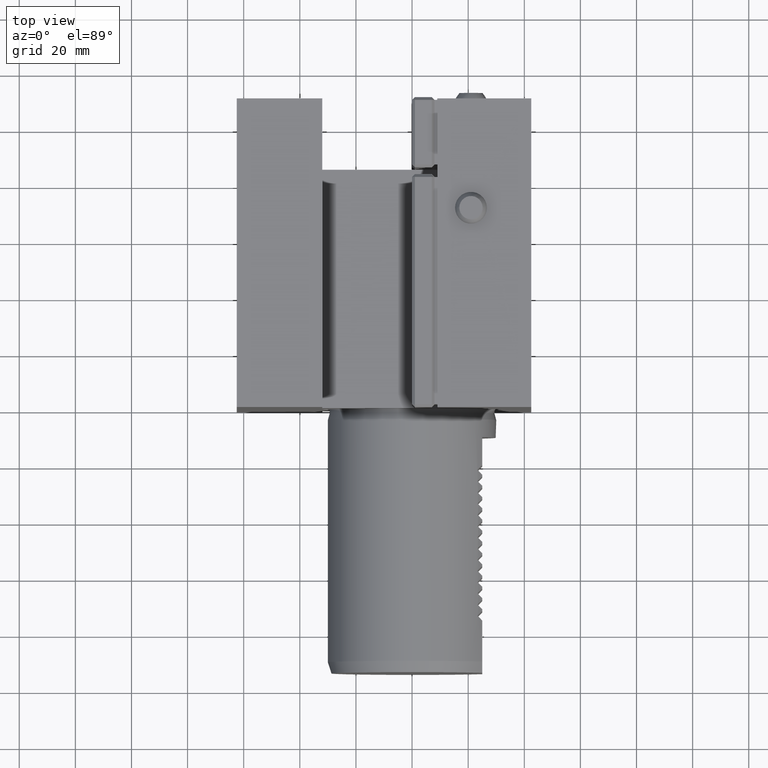
[diagram: clean part render]
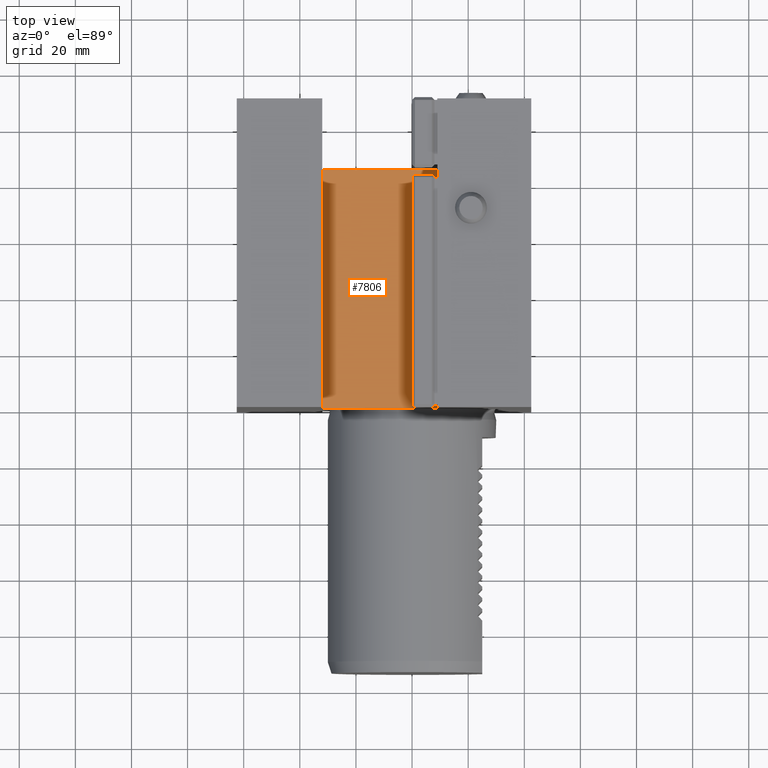
[diagram: same view with one face highlighted and labeled with its STEP entity id]
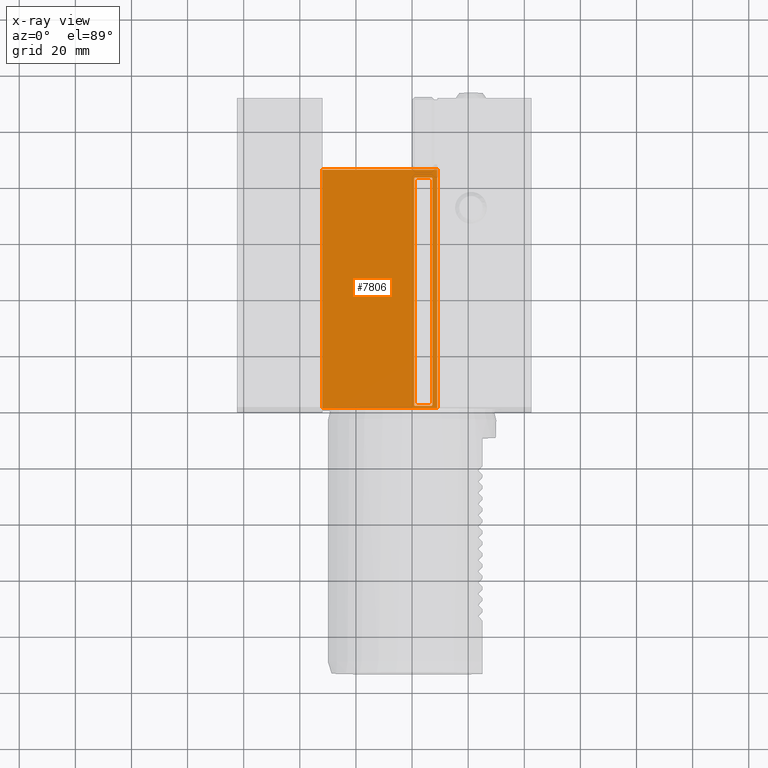
[diagram: x-ray of the same camera — body ghosted, the highlighted face saturated]
A machine part, top view. The second image highlights one B-rep face of the part: STEP entity #7806.
The next image is the same camera in x-ray: the body ghosted, the highlighted face saturated — about 0% of this face is hidden behind the body in this view.
In plain terms, the highlighted planar face has unit normal (0, 0, 1).
Its self-contained STEP definition (entity closure, byte-faithful):
#121 = EDGE_LOOP ( 'NONE', ( #8938, #14912, #8743, #7446, #2421, #11936, #10609, #15193 ) ) ;
#267 = CARTESIAN_POINT ( 'NONE',  ( 1.000000000000000888, 82.20000000000004547, 33.00000000000000000 ) ) ;
#628 = CARTESIAN_POINT ( 'NONE',  ( 8.999999999999991118, 85.00000000000000000, 33.00000000000000000 ) ) ;
#656 = CARTESIAN_POINT ( 'NONE',  ( 9.000000000000003553, -25.00000000000002132, 33.00000000000000000 ) ) ;
#961 = DIRECTION ( 'NONE',  ( 0.7071067811865526798, 0.7071067811865424657, -1.190334323351726974E-16 ) ) ;
#981 = VERTEX_POINT ( 'NONE', #2903 ) ;
#1381 = ORIENTED_EDGE ( 'NONE', *, *, #9389, .T. ) ;
#2063 = AXIS2_PLACEMENT_3D ( 'NONE', #17048, #5008, #10403 ) ;
#2421 = ORIENTED_EDGE ( 'NONE', *, *, #6158, .F. ) ;
#2717 = CARTESIAN_POINT ( 'NONE',  ( 61.60000000000002274, 27.59999999999929088, 32.99999999999999289 ) ) ;
#2766 = CARTESIAN_POINT ( 'NONE',  ( 9.000000000000000000, 3.469446951953614189E-15, 33.00000000000000000 ) ) ;
#2840 = EDGE_CURVE ( 'NONE', #8326, #12363, #10861, .T. ) ;
#2903 = CARTESIAN_POINT ( 'NONE',  ( 0.7999999999999708455, 0.9999999999999974465, 33.00000000000000000 ) ) ;
#3155 = EDGE_CURVE ( 'NONE', #14903, #5206, #11720, .T. ) ;
#3338 = CARTESIAN_POINT ( 'NONE',  ( -31.99999999999998579, -25.00000000000002132, 33.00000000000000711 ) ) ;
#3353 = CARTESIAN_POINT ( 'NONE',  ( 9.000000000000001776, 0.7999999999999778399, 33.00000000000000000 ) ) ;
#3636 = VECTOR ( 'NONE', #4464, 1000.000000000000000 ) ;
#4316 = LINE ( 'NONE', #16446, #5648 ) ;
#4464 = DIRECTION ( 'NONE',  ( -1.000000000000000000, 4.856489900931966903E-17, 1.692413147294446463E-16 ) ) ;
#4747 = VERTEX_POINT ( 'NONE', #5821 ) ;
#4748 = VECTOR ( 'NONE', #11230, 1000.000000000000000 ) ;
#4814 = CARTESIAN_POINT ( 'NONE',  ( 17.90000000000005542, -16.09999999999984510, 33.00000000000000000 ) ) ;
#5008 = DIRECTION ( 'NONE',  ( 1.692413147294446463E-16, 2.192303208339768196E-32, 1.000000000000000000 ) ) ;
#5143 = VECTOR ( 'NONE', #10727, 1000.000000000000114 ) ;
#5206 = VERTEX_POINT ( 'NONE', #6769 ) ;
#5263 = CARTESIAN_POINT ( 'NONE',  ( 0.7999999999999742872, 82.00000000000001421, 33.00000000000000000 ) ) ;
#5589 = CARTESIAN_POINT ( 'NONE',  ( -31.99999999999998579, 0.000000000000000000, 33.00000000000000711 ) ) ;
#5648 = VECTOR ( 'NONE', #15356, 1000.000000000000000 ) ;
#5821 = CARTESIAN_POINT ( 'NONE',  ( -31.99999999999998579, 85.00000000000000000, 33.00000000000000000 ) ) ;
#5873 = LINE ( 'NONE', #12592, #14869 ) ;
#6047 = CARTESIAN_POINT ( 'NONE',  ( 0.9999999999999981126, 0.7999999999999751754, 33.00000000000000000 ) ) ;
#6053 = VERTEX_POINT ( 'NONE', #6047 ) ;
#6158 = EDGE_CURVE ( 'NONE', #981, #6053, #17034, .T. ) ;
#6458 = CARTESIAN_POINT ( 'NONE',  ( 8.999999999999991118, 85.00000000000000000, 33.00000000000000000 ) ) ;
#6673 = EDGE_CURVE ( 'NONE', #11413, #9600, #4316, .T. ) ;
#6713 = CARTESIAN_POINT ( 'NONE',  ( 7.000000000000011546, 82.20000000000003126, 33.00000000000000000 ) ) ;
#6769 = CARTESIAN_POINT ( 'NONE',  ( 7.200000000000020606, 82.00000000000001421, 33.00000000000000000 ) ) ;
#6952 = ORIENTED_EDGE ( 'NONE', *, *, #7787, .F. ) ;
#7204 = DIRECTION ( 'NONE',  ( 1.706246070879765067E-31, -1.000000000000000000, 2.192303208339765185E-32 ) ) ;
#7406 = VECTOR ( 'NONE', #10302, 999.9999999999998863 ) ;
#7446 = ORIENTED_EDGE ( 'NONE', *, *, #13889, .F. ) ;
#7787 = EDGE_CURVE ( 'NONE', #9600, #4747, #9078, .T. ) ;
#7806 = ADVANCED_FACE ( 'Defeature completata2_73', ( #14435, #14344 ), #10320, .T. ) ;
#7831 = CARTESIAN_POINT ( 'NONE',  ( -48.60000000000008669, 32.59999999999928377, 33.00000000000000711 ) ) ;
#7969 = LINE ( 'NONE', #2717, #5143 ) ;
#8326 = VERTEX_POINT ( 'NONE', #267 ) ;
#8525 = LINE ( 'NONE', #656, #17247 ) ;
#8610 = DIRECTION ( 'NONE',  ( -1.295371175675670281E-16, 1.000000000000000000, -0.000000000000000000 ) ) ;
#8743 = ORIENTED_EDGE ( 'NONE', *, *, #10060, .F. ) ;
#8835 = LINE ( 'NONE', #10253, #15247 ) ;
#8894 = VERTEX_POINT ( 'NONE', #6458 ) ;
#8938 = ORIENTED_EDGE ( 'NONE', *, *, #17119, .F. ) ;
#9076 = VECTOR ( 'NONE', #15450, 1000.000000000000000 ) ;
#9078 = LINE ( 'NONE', #3338, #9076 ) ;
#9389 = EDGE_CURVE ( 'NONE', #11413, #8894, #8525, .T. ) ;
#9521 = DIRECTION ( 'NONE',  ( -0.7071067811865426878, -0.7071067811865523467, 1.190334323351715634E-16 ) ) ;
#9600 = VERTEX_POINT ( 'NONE', #5589 ) ;
#9726 = CARTESIAN_POINT ( 'NONE',  ( 7.200000000000015277, 0.9999999999999940048, 33.00000000000000000 ) ) ;
#10060 = EDGE_CURVE ( 'NONE', #12607, #14903, #8835, .T. ) ;
#10253 = CARTESIAN_POINT ( 'NONE',  ( -4.899999999999986144, -11.09999999999983622, 33.00000000000000000 ) ) ;
#10302 = DIRECTION ( 'NONE',  ( 0.7071067811865526798, -0.7071067811865424657, -1.190334323351726974E-16 ) ) ;
#10306 = DIRECTION ( 'NONE',  ( -1.725544494951676808E-32, 1.000000000000000000, -2.192303208339767922E-32 ) ) ;
#10320 = PLANE ( 'NONE',  #2063 ) ;
#10391 = ORIENTED_EDGE ( 'NONE', *, *, #6673, .F. ) ;
#10403 = DIRECTION ( 'NONE',  ( 1.000000000000000000, 0.000000000000000000, -1.692413147294446463E-16 ) ) ;
#10609 = ORIENTED_EDGE ( 'NONE', *, *, #2840, .F. ) ;
#10727 = DIRECTION ( 'NONE',  ( -0.7071067811865426878, 0.7071067811865522357, 1.190334323351715141E-16 ) ) ;
#10861 = LINE ( 'NONE', #7831, #16803 ) ;
#11110 = CARTESIAN_POINT ( 'NONE',  ( 9.000000000000007105, 82.20000000000003126, 33.00000000000000000 ) ) ;
#11230 = DIRECTION ( 'NONE',  ( 1.000000000000000000, -0.000000000000000000, -0.000000000000000000 ) ) ;
#11324 = EDGE_CURVE ( 'NONE', #4747, #8894, #15236, .T. ) ;
#11413 = VERTEX_POINT ( 'NONE', #2766 ) ;
#11720 = LINE ( 'NONE', #15540, #16707 ) ;
#11913 = VECTOR ( 'NONE', #16793, 1000.000000000000000 ) ;
#11936 = ORIENTED_EDGE ( 'NONE', *, *, #15156, .F. ) ;
#12363 = VERTEX_POINT ( 'NONE', #5263 ) ;
#12592 = CARTESIAN_POINT ( 'NONE',  ( 0.7999999999999742872, -25.00000000000002132, 33.00000000000000000 ) ) ;
#12607 = VERTEX_POINT ( 'NONE', #13107 ) ;
#13107 = CARTESIAN_POINT ( 'NONE',  ( 6.999999999999997335, 0.7999999999999777289, 33.00000000000000000 ) ) ;
#13810 = EDGE_LOOP ( 'NONE', ( #16146, #6952, #10391, #1381 ) ) ;
#13820 = VERTEX_POINT ( 'NONE', #6713 ) ;
#13889 = EDGE_CURVE ( 'NONE', #6053, #12607, #16624, .T. ) ;
#14344 = FACE_OUTER_BOUND ( 'NONE', #13810, .T. ) ;
#14435 = FACE_BOUND ( 'NONE', #121, .T. ) ;
#14869 = VECTOR ( 'NONE', #7204, 1000.000000000000000 ) ;
#14903 = VERTEX_POINT ( 'NONE', #9726 ) ;
#14912 = ORIENTED_EDGE ( 'NONE', *, *, #3155, .F. ) ;
#15134 = EDGE_CURVE ( 'NONE', #13820, #8326, #16513, .T. ) ;
#15156 = EDGE_CURVE ( 'NONE', #12363, #981, #5873, .T. ) ;
#15193 = ORIENTED_EDGE ( 'NONE', *, *, #15134, .F. ) ;
#15236 = LINE ( 'NONE', #628, #4748 ) ;
#15247 = VECTOR ( 'NONE', #961, 999.9999999999998863 ) ;
#15356 = DIRECTION ( 'NONE',  ( -1.000000000000000000, -1.295371175675670281E-16, 1.692413147294446463E-16 ) ) ;
#15450 = DIRECTION ( 'NONE',  ( -1.295371175675670281E-16, 1.000000000000000000, -0.000000000000000000 ) ) ;
#15540 = CARTESIAN_POINT ( 'NONE',  ( 7.200000000000020606, -25.00000000000002132, 33.00000000000000000 ) ) ;
#16146 = ORIENTED_EDGE ( 'NONE', *, *, #11324, .F. ) ;
#16446 = CARTESIAN_POINT ( 'NONE',  ( -32.14999999999998437, -1.015914406786805322E-16, 33.00000000000000711 ) ) ;
#16513 = LINE ( 'NONE', #11110, #3636 ) ;
#16624 = LINE ( 'NONE', #3353, #11913 ) ;
#16707 = VECTOR ( 'NONE', #10306, 1000.000000000000000 ) ;
#16793 = DIRECTION ( 'NONE',  ( 1.000000000000000000, 4.856489900931973682E-17, -1.692413147294446463E-16 ) ) ;
#16803 = VECTOR ( 'NONE', #9521, 1000.000000000000000 ) ;
#17034 = LINE ( 'NONE', #4814, #7406 ) ;
#17048 = CARTESIAN_POINT ( 'NONE',  ( 9.000000000000003553, -25.00000000000002132, 33.00000000000000000 ) ) ;
#17119 = EDGE_CURVE ( 'NONE', #5206, #13820, #7969, .T. ) ;
#17247 = VECTOR ( 'NONE', #8610, 1000.000000000000000 ) ;